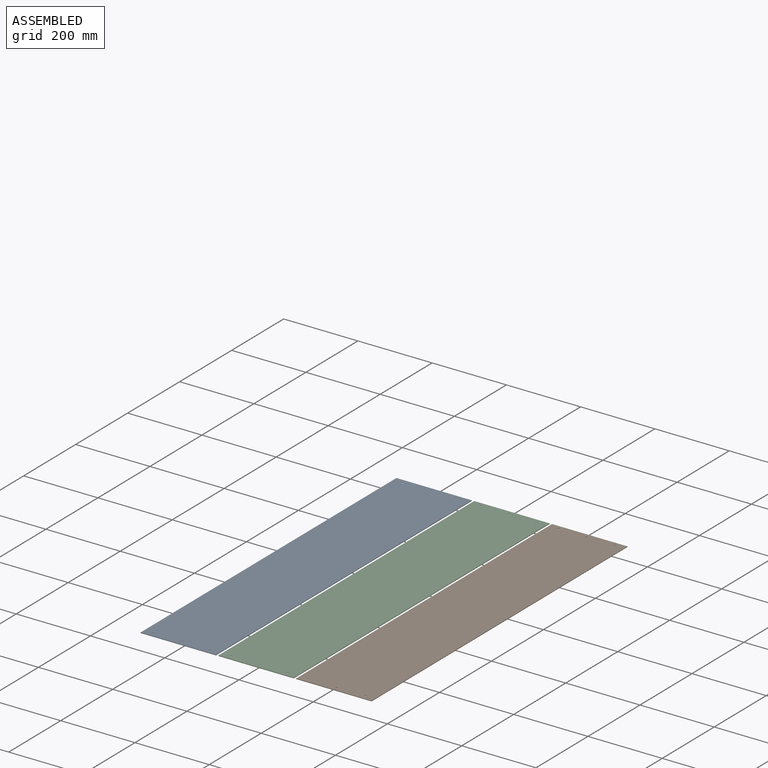
[diagram: assembled view]
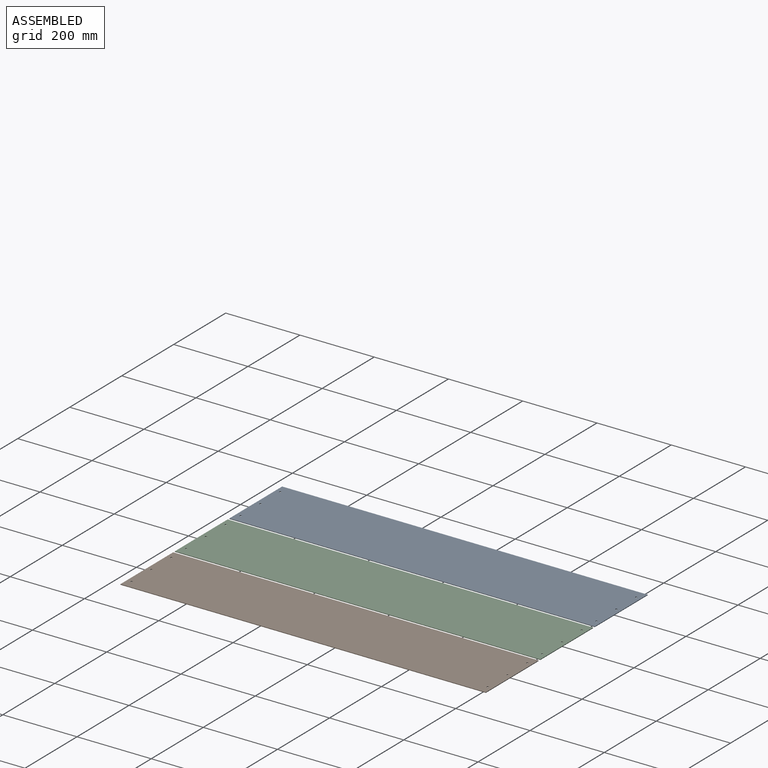
[diagram: assembled view, second angle]
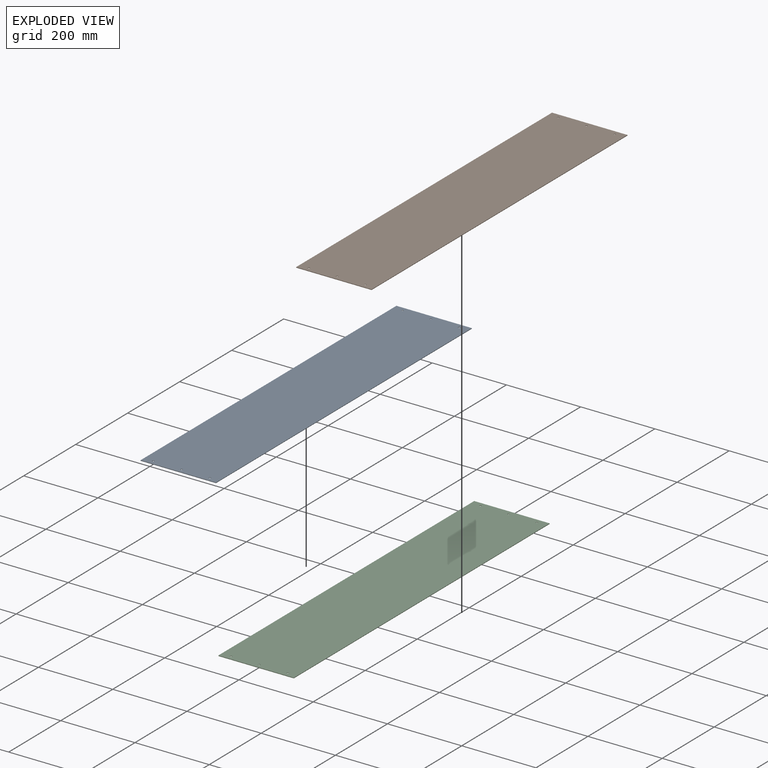
[diagram: exploded view]
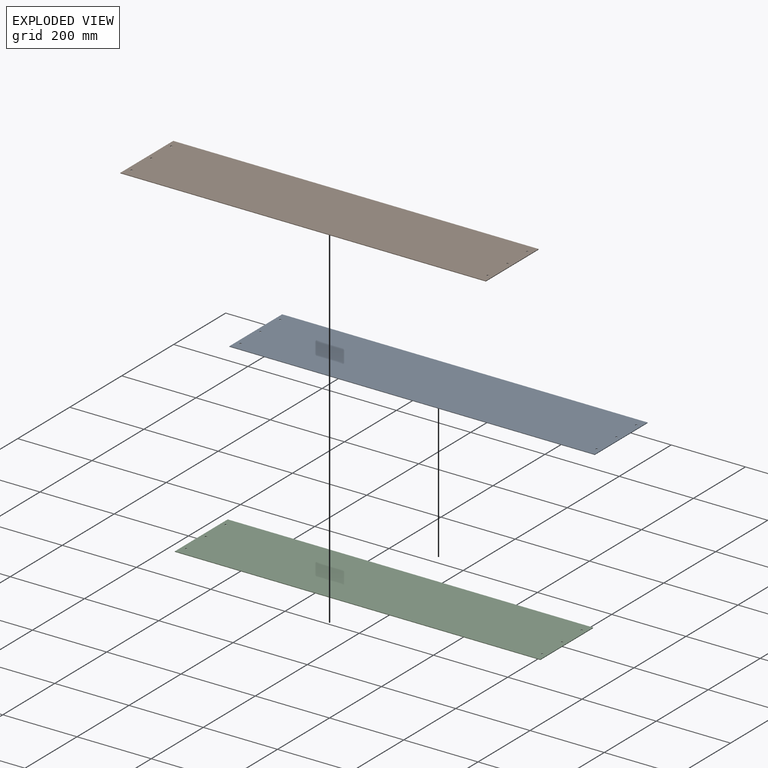
[diagram: exploded view, second angle]
ASSEMBLY  parts=3 mates=2
PART A: 12 faces, bbox 203.2x984.3x1.5 mm
  f0: plane 203.2x1.52mm, normal (0,-1,0), area 309.7mm2, adj f1,f3,f4,f5
  f1: plane 984.25x1.52mm, normal (1,0,0), area 1500mm2, adj f0,f2,f4,f5
  f2: plane 203.2x1.52mm, normal (0,1,0), area 309.7mm2, adj f1,f3,f4,f5
  f3: plane 984.25x1.52mm, normal (-1,0,0), area 1500mm2, adj f0,f2,f4,f5
  f4: plane 984.25x203.2mm, normal (0,0,1), area 199882.8mm2, adj f0,f1,f2,f3,f6,f7,f8,f9
  f5: plane 984.25x203.2mm, normal (0,0,-1), area 199882.8mm2, adj f0,f1,f2,f3,f6,f7,f8,f9
  f6: cylinder r=2.49mm len=4.98mm, axis (0,0,-1), area 23.8mm2, adj f4,f5
  f7: cylinder r=2.49mm len=4.98mm, axis (0,0,-1), area 23.8mm2, adj f4,f5
  f8: cylinder r=2.49mm len=4.98mm, axis (0,0,-1), area 23.8mm2, adj f4,f5
  f9: cylinder r=2.49mm len=4.98mm, axis (0,0,-1), area 23.8mm2, adj f4,f5
  f10: cylinder r=2.49mm len=4.98mm, axis (0,0,-1), area 23.8mm2, adj f4,f5
  f11: cylinder r=2.49mm len=4.98mm, axis (0,0,-1), area 23.8mm2, adj f4,f5
PART B: same geometry as A
PART C: same geometry as A
PLACE A t=(-994.84,-62.95,40.47)mm
PLACE B t=(-575.74,-62.95,40.47)mm
PLACE C t=(-785.29,-62.95,40.47)mm
MATE fastened C.f4 <-> B.f4  axis (0,0,1) through (-785.29,-62.95,41.99)mm
MATE fastened A.f4 <-> C.f4  axis (0,0,1) through (-994.84,-62.95,41.99)mm
